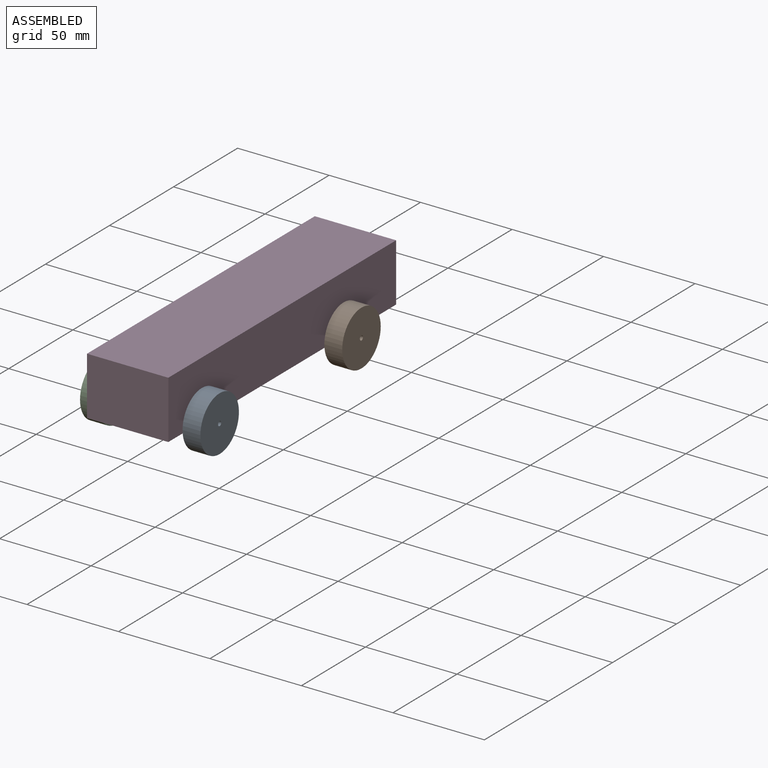
[diagram: assembled view]
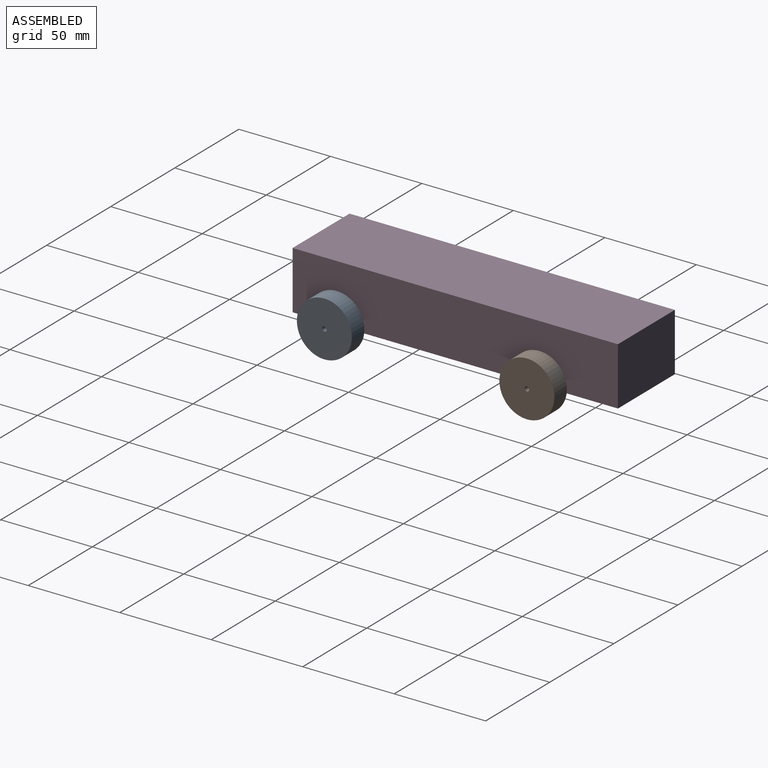
[diagram: assembled view, second angle]
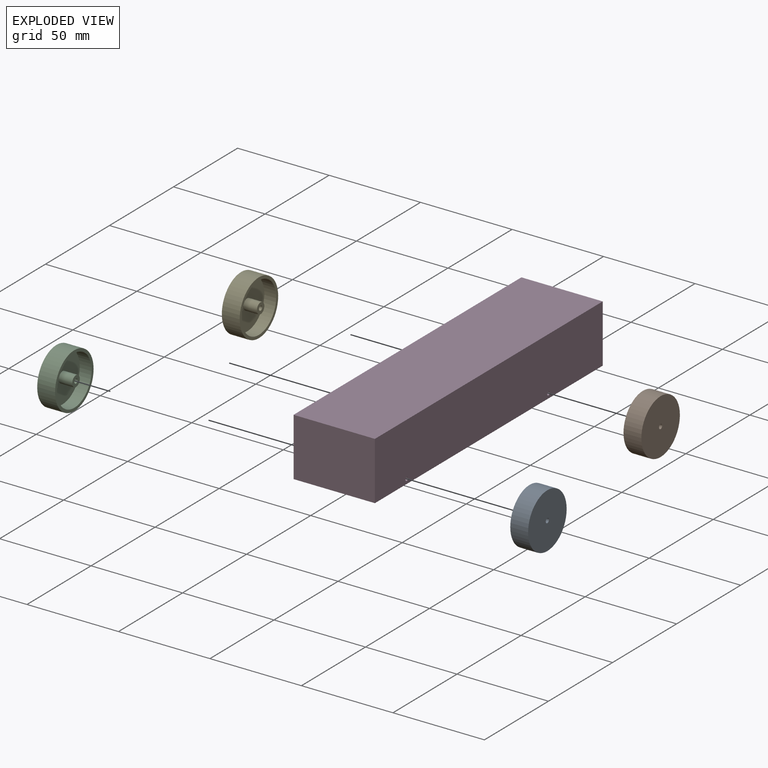
[diagram: exploded view]
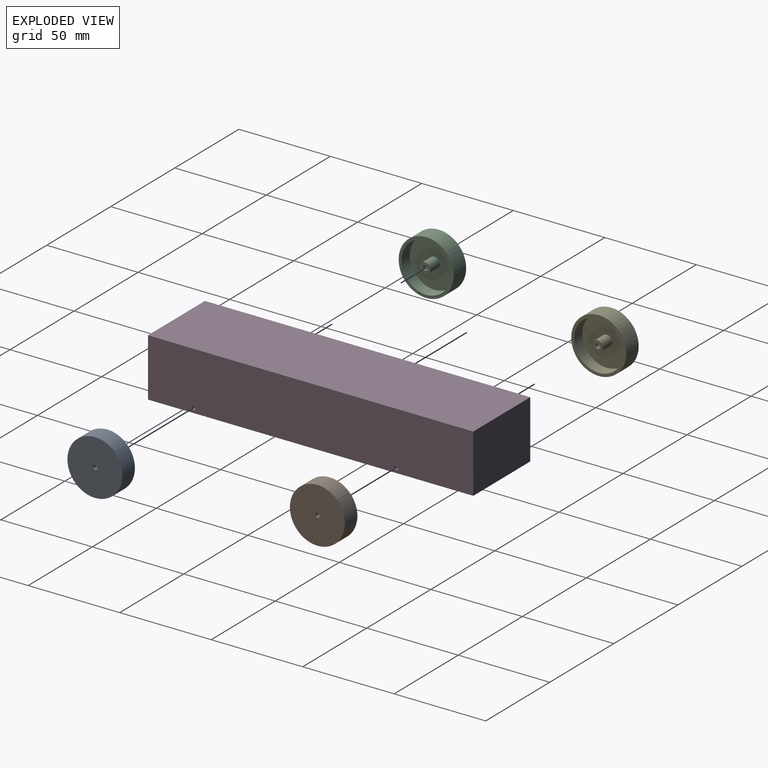
[diagram: exploded view, second angle]
ASSEMBLY  parts=5 mates=4
PART A: 8 faces, bbox 10.7x30.1x30.1 mm
  f0: cylinder r=15.04mm len=30.07mm, axis (-1,0,0), area 921.5mm2, adj f1,f6
  f1: plane 30.07x30.07mm, normal (-1,0,0), area 142.1mm2, adj f0,f2
  f2: cylinder r=13.45mm len=26.9mm, axis (-1,0,0), area 545.2mm2, adj f1,f3
  f3: plane 26.9x26.9mm, normal (-1,0,0), area 541.1mm2, adj f2,f4
  f4: cylinder r=2.94mm len=7.37mm, axis (-1,0,0), area 136.1mm2, adj f3,f5
  f5: plane 5.88x5.88mm, normal (-1,0,0), area 22.3mm2, adj f4,f7
  f6: plane 30.07x30.07mm, normal (1,0,0), area 705.5mm2, adj f0,f7
  f7: cylinder r=1.24mm len=10.67mm, axis (1,0,0), area 83.4mm2, adj f5,f6
PART B: same geometry as A
PART C: same geometry as A
PART D: 23 faces, bbox 44.5x177.8x31.8 mm
  f0: plane 44.45x12.19mm, normal (0,0,-1), area 541.9mm2, adj f5,f6,f13,f21
  f1: plane 44.45x35.69mm, normal (0,0,-1), area 1586.3mm2, adj f5,f6,f9,f20
  f2: plane 44.45x12.19mm, normal (0,0,-1), area 541.9mm2, adj f5,f6,f17,f19
  f3: plane 78.41x44.45mm, normal (0,0,-1), area 3485.3mm2, adj f5,f6,f16,f18
  f4: plane 44.45x18.54mm, normal (0,0,-1), area 824.2mm2, adj f5,f6,f14,f15
  f5: plane 177.8x31.75mm, normal (1,0,0), area 5638.1mm2, adj f0,f1,f2,f3,f4,f7,f8,f9
  f6: plane 177.8x31.75mm, normal (-1,0,0), area 5638.1mm2, adj f0,f1,f2,f3,f4,f7,f8,f9
  f7: plane 44.45x31.75mm, normal (0,-1,0), area 1411.3mm2, adj f5,f6,f8,f11
  f8: plane 44.45x18.24mm, normal (0,0,-1), area 810.6mm2, adj f5,f6,f7,f22
  f9: plane 44.45x31.75mm, normal (0,1,0), area 1411.3mm2, adj f1,f5,f6,f11
  f10: cylinder r=1.02mm len=44.45mm, axis (-1,0,0), area 283.8mm2, adj f5,f6
  f11: plane 177.8x44.45mm, normal (0,0,1), area 7903.2mm2, adj f5,f6,f7,f9
  f12: cylinder r=1.02mm len=44.45mm, axis (-1,0,0), area 283.8mm2, adj f5,f6
  f13: plane 44.45x0.44mm, normal (0,0.87,-0.5), area 22.6mm2, adj f0,f5,f6,f14
  f14: plane 44.45x0.44mm, normal (0,-0.87,-0.5), area 22.6mm2, adj f4,f5,f6,f13
  f15: plane 44.45x0.44mm, normal (0,0.87,-0.5), area 22.6mm2, adj f4,f5,f6,f16
  f16: plane 44.45x0.44mm, normal (0,-0.87,-0.5), area 22.6mm2, adj f3,f5,f6,f15
  f17: plane 44.45x0.44mm, normal (0,-0.87,-0.5), area 22.6mm2, adj f2,f5,f6,f18
  f18: plane 44.45x0.44mm, normal (0,0.87,-0.5), area 22.6mm2, adj f3,f5,f6,f17
  f19: plane 44.45x0.44mm, normal (0,0.87,-0.5), area 22.6mm2, adj f2,f5,f6,f20
  f20: plane 44.45x0.44mm, normal (0,-0.87,-0.5), area 22.6mm2, adj f1,f5,f6,f19
  f21: plane 44.45x0.44mm, normal (0,-0.87,-0.5), area 22.6mm2, adj f0,f5,f6,f22
  f22: plane 44.45x0.44mm, normal (0,0.87,-0.5), area 22.6mm2, adj f5,f6,f8,f21
PART E: same geometry as A
PLACE A t=(22.22,24.84,2.46)mm
PLACE B t=(22.22,135.51,2.46)mm
PLACE C rot(axis=(0,1,0),180deg) t=(-22.22,24.84,2.46)mm
PLACE D at identity
PLACE E rot(axis=(0,1,0),180deg) t=(-22.22,135.51,2.46)mm
MATE fastened D.f12 <-> B.f7  axis (1,0,0) through (22.22,135.51,2.46)mm
MATE fastened E.f7 <-> D.f12  axis (1,0,0) through (-22.22,135.51,2.46)mm
MATE fastened C.f7 <-> D.f10  axis (1,0,0) through (-22.22,24.84,2.46)mm
MATE fastened A.f7 <-> D.f10  axis (-1,0,0) through (22.22,24.84,2.46)mm
